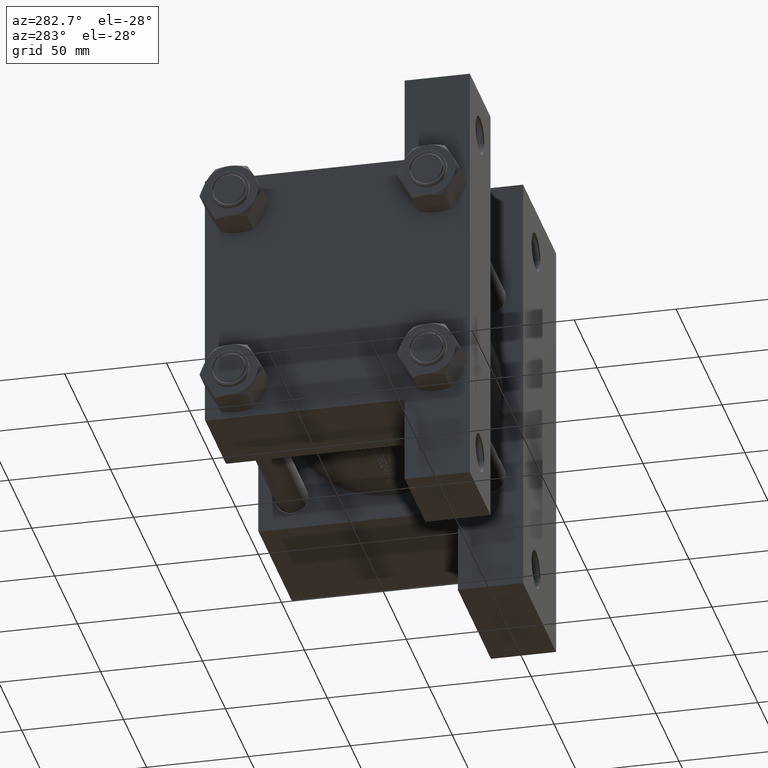
[diagram: clean part render]
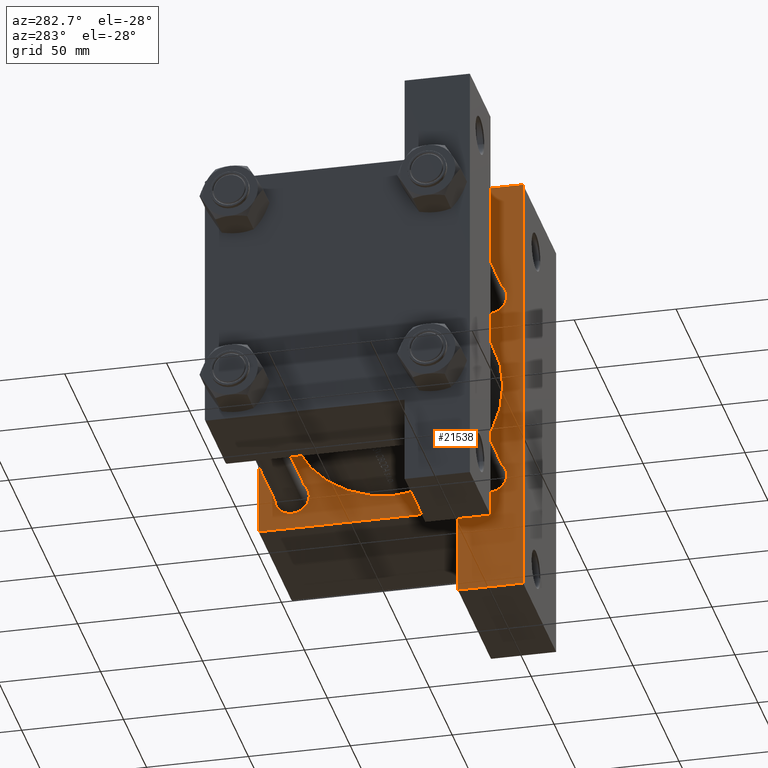
[diagram: same view with one face highlighted and labeled with its STEP entity id]
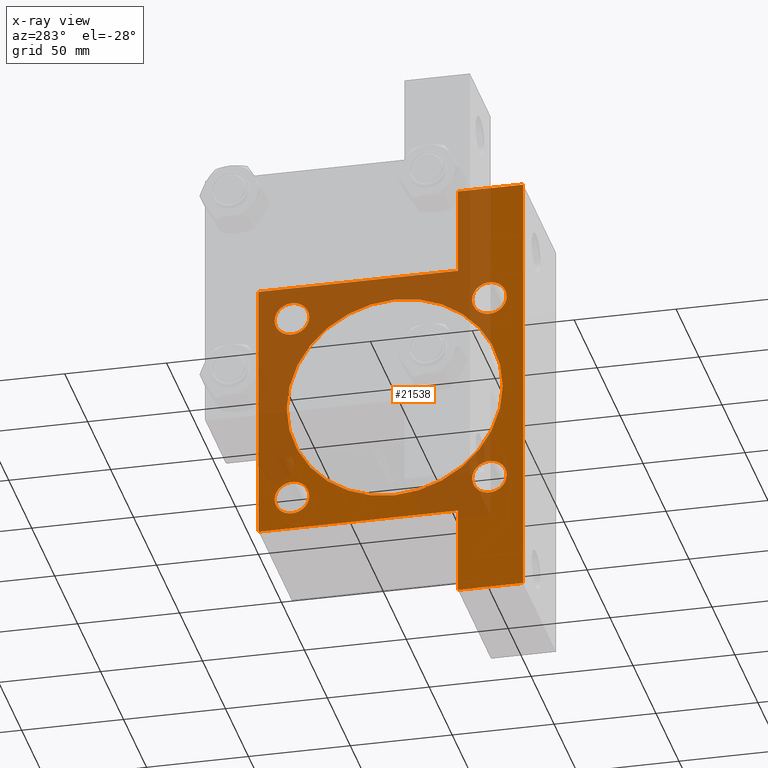
[diagram: x-ray of the same camera — body ghosted, the highlighted face saturated]
A machine part, auxiliary view. The second image highlights one B-rep face of the part: STEP entity #21538.
The next image is the same camera in x-ray: the body ghosted, the highlighted face saturated — about 49% of this face is hidden behind the body in this view.
In plain terms, the highlighted planar face has unit normal (-1, 0, -0).
Its self-contained STEP definition (entity closure, byte-faithful):
#54 = DIRECTION ( 'NONE',  ( 0.000000000000000000, 0.000000000000000000, 1.000000000000000000 ) ) ;
#133 = VERTEX_POINT ( 'NONE', #29599 ) ;
#394 = EDGE_CURVE ( 'NONE', #24685, #30976, #21036, .T. ) ;
#632 = CARTESIAN_POINT ( 'NONE',  ( 115.9999999999999858, 6.490628035480973107E-15, -54.99999999999999289 ) ) ;
#1034 = DIRECTION ( 'NONE',  ( 0.000000000000000000, 0.000000000000000000, -1.000000000000000000 ) ) ;
#1133 = CARTESIAN_POINT ( 'NONE',  ( 115.9999999999999858, 65.00000000000002842, 64.50000000000001421 ) ) ;
#1224 = VECTOR ( 'NONE', #1034, 1000.000000000000000 ) ;
#2230 = CARTESIAN_POINT ( 'NONE',  ( 115.9999999999999858, -48.44999999999999574, 48.45000000000003126 ) ) ;
#2679 = CARTESIAN_POINT ( 'NONE',  ( 115.9999999999999858, 64.50000000000002842, 65.00000000000001421 ) ) ;
#2695 = EDGE_LOOP ( 'NONE', ( #29577, #32859 ) ) ;
#3110 = DIRECTION ( 'NONE',  ( 0.000000000000000000, 0.000000000000000000, 1.000000000000000000 ) ) ;
#4091 = CARTESIAN_POINT ( 'NONE',  ( 115.9999999999999858, 48.45000000000000995, 48.45000000000001705 ) ) ;
#4138 = VERTEX_POINT ( 'NONE', #45191 ) ;
#4406 = CARTESIAN_POINT ( 'NONE',  ( 115.9999999999999858, 48.45000000000000995, 48.45000000000001705 ) ) ;
#4411 = AXIS2_PLACEMENT_3D ( 'NONE', #4406, #25819, #54 ) ;
#4738 = DIRECTION ( 'NONE',  ( 0.000000000000000000, 0.000000000000000000, 1.000000000000000000 ) ) ;
#5172 = VECTOR ( 'NONE', #8382, 1000.000000000000114 ) ;
#5442 = DIRECTION ( 'NONE',  ( 0.000000000000000000, -1.000000000000000000, -1.067522139062650425E-16 ) ) ;
#5506 = VECTOR ( 'NONE', #5984, 999.9999999999998863 ) ;
#5754 = CARTESIAN_POINT ( 'NONE',  ( 115.9999999999999858, 48.45000000000000995, 56.95000000000002416 ) ) ;
#5776 = VERTEX_POINT ( 'NONE', #16561 ) ;
#5984 = DIRECTION ( 'NONE',  ( -0.000000000000000000, 0.7071067811865376918, 0.7071067811865574537 ) ) ;
#6353 = DIRECTION ( 'NONE',  ( 1.000000000000000000, 0.000000000000000000, 0.000000000000000000 ) ) ;
#7062 = CARTESIAN_POINT ( 'NONE',  ( 115.9999999999999858, -64.50000000000002842, 65.00000000000000000 ) ) ;
#7579 = EDGE_CURVE ( 'NONE', #9363, #133, #35868, .T. ) ;
#7906 = AXIS2_PLACEMENT_3D ( 'NONE', #11564, #22062, #36902 ) ;
#7950 = DIRECTION ( 'NONE',  ( 0.000000000000000000, 0.000000000000000000, 1.000000000000000000 ) ) ;
#7959 = DIRECTION ( 'NONE',  ( 1.000000000000000000, -0.000000000000000000, 0.000000000000000000 ) ) ;
#8050 = LINE ( 'NONE', #37719, #29323 ) ;
#8238 = ORIENTED_EDGE ( 'NONE', *, *, #22128, .T. ) ;
#8345 = DIRECTION ( 'NONE',  ( 1.000000000000000000, 0.000000000000000000, 0.000000000000000000 ) ) ;
#8382 = DIRECTION ( 'NONE',  ( 0.000000000000000000, 0.7071067811865474617, -0.7071067811865474617 ) ) ;
#8812 = CARTESIAN_POINT ( 'NONE',  ( 116.0000000000000000, 108.0000000000000000, -33.00000000000000000 ) ) ;
#9363 = VERTEX_POINT ( 'NONE', #14504 ) ;
#9589 = ORIENTED_EDGE ( 'NONE', *, *, #25547, .T. ) ;
#9812 = CARTESIAN_POINT ( 'NONE',  ( 115.9999999999999858, -48.44999999999999574, 56.95000000000003837 ) ) ;
#10084 = ORIENTED_EDGE ( 'NONE', *, *, #26441, .T. ) ;
#10441 = CARTESIAN_POINT ( 'NONE',  ( 115.9999999999999858, -64.99999999999998579, 64.50000000000002842 ) ) ;
#10856 = LINE ( 'NONE', #14747, #26131 ) ;
#11564 = CARTESIAN_POINT ( 'NONE',  ( 115.9999999999999858, -48.44999999999999574, -48.45000000000003126 ) ) ;
#11585 = CARTESIAN_POINT ( 'NONE',  ( 115.9999999999999858, 48.45000000000000995, -48.45000000000001705 ) ) ;
#11717 = LINE ( 'NONE', #41641, #42617 ) ;
#12007 = VERTEX_POINT ( 'NONE', #29171 ) ;
#12070 = AXIS2_PLACEMENT_3D ( 'NONE', #4091, #7959, #33755 ) ;
#12106 = VERTEX_POINT ( 'NONE', #38640 ) ;
#12145 = ORIENTED_EDGE ( 'NONE', *, *, #24226, .T. ) ;
#12391 = CARTESIAN_POINT ( 'NONE',  ( 115.9999999999999858, 48.45000000000000995, -48.45000000000001705 ) ) ;
#13086 = ORIENTED_EDGE ( 'NONE', *, *, #394, .T. ) ;
#13139 = DIRECTION ( 'NONE',  ( 1.000000000000000000, -0.000000000000000000, 0.000000000000000000 ) ) ;
#13650 = EDGE_CURVE ( 'NONE', #133, #9363, #39963, .T. ) ;
#14299 = VERTEX_POINT ( 'NONE', #31357 ) ;
#14395 = VECTOR ( 'NONE', #45919, 1000.000000000000000 ) ;
#14429 = AXIS2_PLACEMENT_3D ( 'NONE', #2230, #13139, #25055 ) ;
#14432 = FACE_BOUND ( 'NONE', #41129, .T. ) ;
#14504 = CARTESIAN_POINT ( 'NONE',  ( 115.9999999999999858, -48.44999999999999574, -56.95000000000003837 ) ) ;
#14747 = CARTESIAN_POINT ( 'NONE',  ( 115.9999999999999858, 65.00000000000002842, 65.00000000000001421 ) ) ;
#14935 = ORIENTED_EDGE ( 'NONE', *, *, #22240, .T. ) ;
#15167 = VERTEX_POINT ( 'NONE', #2679 ) ;
#15622 = AXIS2_PLACEMENT_3D ( 'NONE', #18172, #21579, #3110 ) ;
#16033 = EDGE_CURVE ( 'NONE', #39117, #37017, #47799, .T. ) ;
#16561 = CARTESIAN_POINT ( 'NONE',  ( 115.9999999999999858, 48.45000000000000995, -56.95000000000002416 ) ) ;
#17076 = DIRECTION ( 'NONE',  ( 0.000000000000000000, 0.000000000000000000, -1.000000000000000000 ) ) ;
#18172 = CARTESIAN_POINT ( 'NONE',  ( 115.9999999999999858, -48.44999999999999574, 48.45000000000003126 ) ) ;
#18549 = DIRECTION ( 'NONE',  ( 3.227392513445223797E-16, 1.000000000000000000, 0.000000000000000000 ) ) ;
#18559 = PLANE ( 'NONE',  #40859 ) ;
#18686 = CIRCLE ( 'NONE', #28753, 8.500000000000007105 ) ;
#19047 = ORIENTED_EDGE ( 'NONE', *, *, #33789, .T. ) ;
#19410 = CARTESIAN_POINT ( 'NONE',  ( 116.0000000000000000, 108.0000000000000000, -33.00000000000000000 ) ) ;
#19426 = ORIENTED_EDGE ( 'NONE', *, *, #34293, .T. ) ;
#19483 = LINE ( 'NONE', #34346, #1224 ) ;
#19983 = EDGE_CURVE ( 'NONE', #24685, #4138, #19483, .T. ) ;
#20024 = EDGE_CURVE ( 'NONE', #21459, #25841, #26811, .T. ) ;
#21036 = LINE ( 'NONE', #40259, #5506 ) ;
#21107 = CARTESIAN_POINT ( 'NONE',  ( 115.9999999999999716, -107.9999999999999716, -65.00000000000000000 ) ) ;
#21301 = AXIS2_PLACEMENT_3D ( 'NONE', #37107, #42177, #4738 ) ;
#21459 = VERTEX_POINT ( 'NONE', #9812 ) ;
#21538 = ADVANCED_FACE ( 'NONE', ( #33176, #32932, #32443, #47261, #14432, #29262 ), #18559, .T. ) ;
#21579 = DIRECTION ( 'NONE',  ( 1.000000000000000000, -0.000000000000000000, 0.000000000000000000 ) ) ;
#21806 = EDGE_CURVE ( 'NONE', #14299, #32889, #31181, .T. ) ;
#21975 = DIRECTION ( 'NONE',  ( -1.000000000000000000, 0.000000000000000000, -0.000000000000000000 ) ) ;
#22062 = DIRECTION ( 'NONE',  ( 1.000000000000000000, -0.000000000000000000, 0.000000000000000000 ) ) ;
#22128 = EDGE_CURVE ( 'NONE', #41497, #32889, #34180, .T. ) ;
#22240 = EDGE_CURVE ( 'NONE', #15167, #36643, #37579, .T. ) ;
#22450 = CIRCLE ( 'NONE', #39531, 8.500000000000007105 ) ;
#22502 = CARTESIAN_POINT ( 'NONE',  ( 115.9999999999999858, 0.000000000000000000, 51.00000000000001421 ) ) ;
#22610 = ORIENTED_EDGE ( 'NONE', *, *, #30178, .T. ) ;
#23704 = CARTESIAN_POINT ( 'NONE',  ( 115.9999999999999858, 65.00000000000002842, -64.99999999999998579 ) ) ;
#24226 = EDGE_CURVE ( 'NONE', #36643, #27169, #10856, .T. ) ;
#24347 = DIRECTION ( 'NONE',  ( 0.000000000000000000, 0.000000000000000000, -1.000000000000000000 ) ) ;
#24451 = EDGE_LOOP ( 'NONE', ( #26122, #14935, #12145, #9589, #22610, #8238, #42012, #19047, #42533, #13086 ) ) ;
#24495 = EDGE_CURVE ( 'NONE', #41417, #12106, #44747, .T. ) ;
#24585 = CARTESIAN_POINT ( 'NONE',  ( 115.9999999999999858, 0.000000000000000000, -1.999999999999988010 ) ) ;
#24685 = VERTEX_POINT ( 'NONE', #10441 ) ;
#25055 = DIRECTION ( 'NONE',  ( 0.000000000000000000, 0.000000000000000000, 1.000000000000000000 ) ) ;
#25365 = VECTOR ( 'NONE', #27590, 1000.000000000000000 ) ;
#25492 = CARTESIAN_POINT ( 'NONE',  ( 115.9999999999999858, -48.44999999999999574, 39.95000000000001705 ) ) ;
#25547 = EDGE_CURVE ( 'NONE', #27169, #37372, #34759, .T. ) ;
#25701 = DIRECTION ( 'NONE',  ( 0.000000000000000000, 0.000000000000000000, -1.000000000000000000 ) ) ;
#25819 = DIRECTION ( 'NONE',  ( 1.000000000000000000, -0.000000000000000000, 0.000000000000000000 ) ) ;
#25841 = VERTEX_POINT ( 'NONE', #25492 ) ;
#25976 = EDGE_CURVE ( 'NONE', #12106, #41417, #29185, .T. ) ;
#26094 = DIRECTION ( 'NONE',  ( -0.000000000000000000, 0.000000000000000000, 1.000000000000000000 ) ) ;
#26122 = ORIENTED_EDGE ( 'NONE', *, *, #31466, .F. ) ;
#26131 = VECTOR ( 'NONE', #25701, 1000.000000000000000 ) ;
#26441 = EDGE_CURVE ( 'NONE', #37017, #39117, #46257, .T. ) ;
#26520 = DIRECTION ( 'NONE',  ( 0.000000000000000000, 0.000000000000000000, -1.000000000000000000 ) ) ;
#26811 = CIRCLE ( 'NONE', #14429, 8.500000000000007105 ) ;
#27152 = CARTESIAN_POINT ( 'NONE',  ( 115.9999999999999858, 65.00000000000002842, -33.00000000000000000 ) ) ;
#27169 = VERTEX_POINT ( 'NONE', #27152 ) ;
#27315 = CARTESIAN_POINT ( 'NONE',  ( 115.9999999999999858, 65.00000000000002842, 65.00000000000001421 ) ) ;
#27461 = DIRECTION ( 'NONE',  ( 0.000000000000000000, 0.000000000000000000, 1.000000000000000000 ) ) ;
#27523 = CARTESIAN_POINT ( 'NONE',  ( 115.9999999999999716, -107.9999999999999716, -33.00000000000000000 ) ) ;
#27590 = DIRECTION ( 'NONE',  ( 0.000000000000000000, -1.000000000000000000, -2.135044278125300850E-16 ) ) ;
#28059 = CIRCLE ( 'NONE', #15622, 8.500000000000007105 ) ;
#28753 = AXIS2_PLACEMENT_3D ( 'NONE', #11585, #41263, #7950 ) ;
#29171 = CARTESIAN_POINT ( 'NONE',  ( 115.9999999999999858, 48.45000000000000995, -39.95000000000000284 ) ) ;
#29185 = CIRCLE ( 'NONE', #12070, 8.500000000000007105 ) ;
#29262 = FACE_OUTER_BOUND ( 'NONE', #24451, .T. ) ;
#29323 = VECTOR ( 'NONE', #26520, 1000.000000000000000 ) ;
#29577 = ORIENTED_EDGE ( 'NONE', *, *, #13650, .T. ) ;
#29599 = CARTESIAN_POINT ( 'NONE',  ( 115.9999999999999858, -48.44999999999999574, -39.95000000000001705 ) ) ;
#30178 = EDGE_CURVE ( 'NONE', #37372, #41497, #8050, .T. ) ;
#30871 = ORIENTED_EDGE ( 'NONE', *, *, #20024, .T. ) ;
#30976 = VERTEX_POINT ( 'NONE', #7062 ) ;
#31152 = ORIENTED_EDGE ( 'NONE', *, *, #24495, .T. ) ;
#31181 = LINE ( 'NONE', #27523, #38540 ) ;
#31357 = CARTESIAN_POINT ( 'NONE',  ( 115.9999999999999716, -107.9999999999999716, -33.00000000000000000 ) ) ;
#31466 = EDGE_CURVE ( 'NONE', #15167, #30976, #34639, .T. ) ;
#31615 = ORIENTED_EDGE ( 'NONE', *, *, #16033, .T. ) ;
#32255 = AXIS2_PLACEMENT_3D ( 'NONE', #34137, #8345, #17076 ) ;
#32443 = FACE_BOUND ( 'NONE', #45841, .T. ) ;
#32859 = ORIENTED_EDGE ( 'NONE', *, *, #7579, .T. ) ;
#32889 = VERTEX_POINT ( 'NONE', #21107 ) ;
#32932 = FACE_BOUND ( 'NONE', #34289, .T. ) ;
#33176 = FACE_BOUND ( 'NONE', #40410, .T. ) ;
#33755 = DIRECTION ( 'NONE',  ( 0.000000000000000000, 0.000000000000000000, 1.000000000000000000 ) ) ;
#33789 = EDGE_CURVE ( 'NONE', #14299, #4138, #11717, .T. ) ;
#34137 = CARTESIAN_POINT ( 'NONE',  ( 115.9999999999999858, 0.000000000000000000, -1.999999999999988010 ) ) ;
#34180 = LINE ( 'NONE', #23704, #25365 ) ;
#34289 = EDGE_LOOP ( 'NONE', ( #31152, #43495 ) ) ;
#34293 = EDGE_CURVE ( 'NONE', #5776, #12007, #22450, .T. ) ;
#34346 = CARTESIAN_POINT ( 'NONE',  ( 115.9999999999999858, -64.99999999999998579, 65.00000000000000000 ) ) ;
#34619 = AXIS2_PLACEMENT_3D ( 'NONE', #24585, #6353, #24347 ) ;
#34639 = LINE ( 'NONE', #27315, #34788 ) ;
#34759 = LINE ( 'NONE', #19410, #14395 ) ;
#34788 = VECTOR ( 'NONE', #5442, 1000.000000000000000 ) ;
#35868 = CIRCLE ( 'NONE', #7906, 8.500000000000007105 ) ;
#36643 = VERTEX_POINT ( 'NONE', #1133 ) ;
#36902 = DIRECTION ( 'NONE',  ( 0.000000000000000000, 0.000000000000000000, 1.000000000000000000 ) ) ;
#37017 = VERTEX_POINT ( 'NONE', #22502 ) ;
#37107 = CARTESIAN_POINT ( 'NONE',  ( 115.9999999999999858, -48.44999999999999574, -48.45000000000003126 ) ) ;
#37372 = VERTEX_POINT ( 'NONE', #8812 ) ;
#37579 = LINE ( 'NONE', #41709, #5172 ) ;
#37719 = CARTESIAN_POINT ( 'NONE',  ( 116.0000000000000000, 108.0000000000000000, -33.00000000000000000 ) ) ;
#38407 = ORIENTED_EDGE ( 'NONE', *, *, #41359, .T. ) ;
#38540 = VECTOR ( 'NONE', #46002, 1000.000000000000000 ) ;
#38640 = CARTESIAN_POINT ( 'NONE',  ( 115.9999999999999858, 48.45000000000000995, 39.95000000000000284 ) ) ;
#39117 = VERTEX_POINT ( 'NONE', #632 ) ;
#39531 = AXIS2_PLACEMENT_3D ( 'NONE', #12391, #46179, #27461 ) ;
#39539 = CARTESIAN_POINT ( 'NONE',  ( 116.0000000000000000, 108.0000000000000000, -65.00000000000000000 ) ) ;
#39963 = CIRCLE ( 'NONE', #21301, 8.500000000000007105 ) ;
#40259 = CARTESIAN_POINT ( 'NONE',  ( 115.9999999999999858, -64.75000000000092371, 64.74999999999911893 ) ) ;
#40410 = EDGE_LOOP ( 'NONE', ( #30871, #43174 ) ) ;
#40859 = AXIS2_PLACEMENT_3D ( 'NONE', #47743, #21975, #26094 ) ;
#41129 = EDGE_LOOP ( 'NONE', ( #10084, #31615 ) ) ;
#41263 = DIRECTION ( 'NONE',  ( 1.000000000000000000, -0.000000000000000000, 0.000000000000000000 ) ) ;
#41359 = EDGE_CURVE ( 'NONE', #12007, #5776, #18686, .T. ) ;
#41417 = VERTEX_POINT ( 'NONE', #5754 ) ;
#41497 = VERTEX_POINT ( 'NONE', #39539 ) ;
#41641 = CARTESIAN_POINT ( 'NONE',  ( 115.9999999999999716, -107.9999999999999716, -33.00000000000000000 ) ) ;
#41709 = CARTESIAN_POINT ( 'NONE',  ( 115.9999999999999858, 64.75000000000001421, 64.75000000000001421 ) ) ;
#42012 = ORIENTED_EDGE ( 'NONE', *, *, #21806, .F. ) ;
#42177 = DIRECTION ( 'NONE',  ( 1.000000000000000000, -0.000000000000000000, 0.000000000000000000 ) ) ;
#42533 = ORIENTED_EDGE ( 'NONE', *, *, #19983, .F. ) ;
#42617 = VECTOR ( 'NONE', #18549, 1000.000000000000000 ) ;
#43174 = ORIENTED_EDGE ( 'NONE', *, *, #43946, .T. ) ;
#43495 = ORIENTED_EDGE ( 'NONE', *, *, #25976, .T. ) ;
#43946 = EDGE_CURVE ( 'NONE', #25841, #21459, #28059, .T. ) ;
#44747 = CIRCLE ( 'NONE', #4411, 8.500000000000007105 ) ;
#45191 = CARTESIAN_POINT ( 'NONE',  ( 115.9999999999999858, -64.99999999999998579, -33.00000000000000000 ) ) ;
#45841 = EDGE_LOOP ( 'NONE', ( #38407, #19426 ) ) ;
#45919 = DIRECTION ( 'NONE',  ( 3.227392513445224783E-16, 1.000000000000000000, -0.000000000000000000 ) ) ;
#46002 = DIRECTION ( 'NONE',  ( 0.000000000000000000, 0.000000000000000000, -1.000000000000000000 ) ) ;
#46179 = DIRECTION ( 'NONE',  ( 1.000000000000000000, -0.000000000000000000, 0.000000000000000000 ) ) ;
#46257 = CIRCLE ( 'NONE', #34619, 53.00000000000000711 ) ;
#47261 = FACE_BOUND ( 'NONE', #2695, .T. ) ;
#47743 = CARTESIAN_POINT ( 'NONE',  ( 115.9999999999999858, 0.000000000000000000, 0.000000000000000000 ) ) ;
#47799 = CIRCLE ( 'NONE', #32255, 53.00000000000000711 ) ;